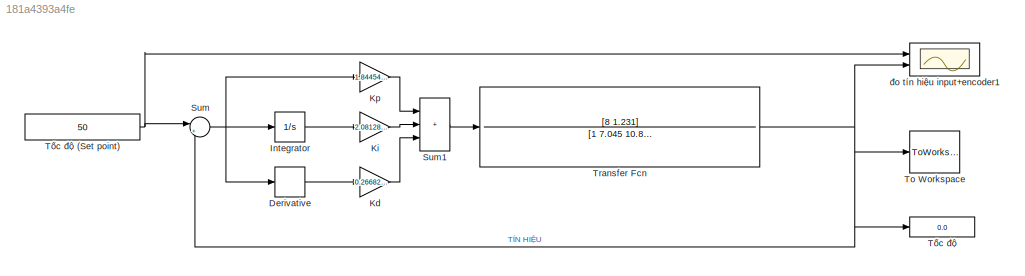
MODEL slx_181a4393a4fe
KIND model
CONFIG AbsTol = auto
CONFIG EnableMultiTasking = on
CONFIG FixedStep = auto
CONFIG MaxStep = auto
CONFIG MinStep = auto
CONFIG RelTol = 1e-3
CONFIG SampleTimeConstraint = Unconstrained
CONFIG SolverName = FixedStepAuto
CONFIG StartTime = 0.0
CONFIG StopTime = 10.0
BLOCK [Derivative] Derivative
BLOCK [Integrator] Integrator
  Ports = [1, 1]
BLOCK [Gain] Kd
  Gain = 0.266829579777013
BLOCK [Gain] Ki
  Gain = 2.08128367760483
BLOCK [Gain] Kp
  Gain = 1.8445479221071
BLOCK [Sum] Sum
  Inputs = |+-
  Ports = [2, 1]
BLOCK [Sum] Sum1
  IconShape = rectangular
  Inputs = |+++
  Ports = [3, 1]
BLOCK [ToWorkspace] To Workspace
  MaxDataPoints = inf
  Ports = [1]
  SampleTime = -1
  Save2DSignal = 2-D array (concatenate along first dimension)
  VariableName = hamtruyenDC
BLOCK [TransferFcn] Transfer Fcn
  Denominator = [1 7.045 10.86 0.6242]
  Numerator = [8 1.231]
BLOCK [Display] Tốc độ
  Decimation = 1
  Ports = [1]
BLOCK [Constant] Tốc độ (Set point)
  OutDataTypeStr = int16
  OutMax = [270]
  OutMin = [-270]
  Value = 50
  VectorParams1D = off
BLOCK [Scope] đo tín hiệu input+encoder1
  Floating = off
  NumInputPorts = 2
  Ports = [2]
  ScopeSpecificationString = Simulink.scopes.TimeScopeBlockCfg('CurrentConfiguration', extmgr.ConfigurationSet(extmgr.Configuration('Core','General UI',true,'FigureColor',[1 1 1]),extmgr.Configuration('Core','Source UI',true),extmgr.Configuration('Sources','WiredSimulink',true,'DataLoggingVariableName','ScopeData1'),extmgr.Configuration('Visuals','Time Domain',true,'SerializedDisplays',{struct('MinYLimReal','-9.28779','MaxYLi...<+1862ch>
LINE Derivative:1 -> Kd:1
LINE Integrator:1 -> Ki:1
LINE Kd:1 -> Sum1:3
LINE Ki:1 -> Sum1:2
LINE Kp:1 -> Sum1:1
LINE Sum1:1 -> Transfer Fcn:1
NET Sum:1 -> Derivative:1, Integrator:1, Kp:1
NET Transfer Fcn:1 -> Sum:2, To Workspace:1, Tốc độ:1, đo tín hiệu input+encoder1:2
NET Tốc độ (Set point):1 -> Sum:1, đo tín hiệu input+encoder1:1
note: NET lines group one-source signal fan-out (src -> all destinations, sorted); 1:1 wires keep LINE
